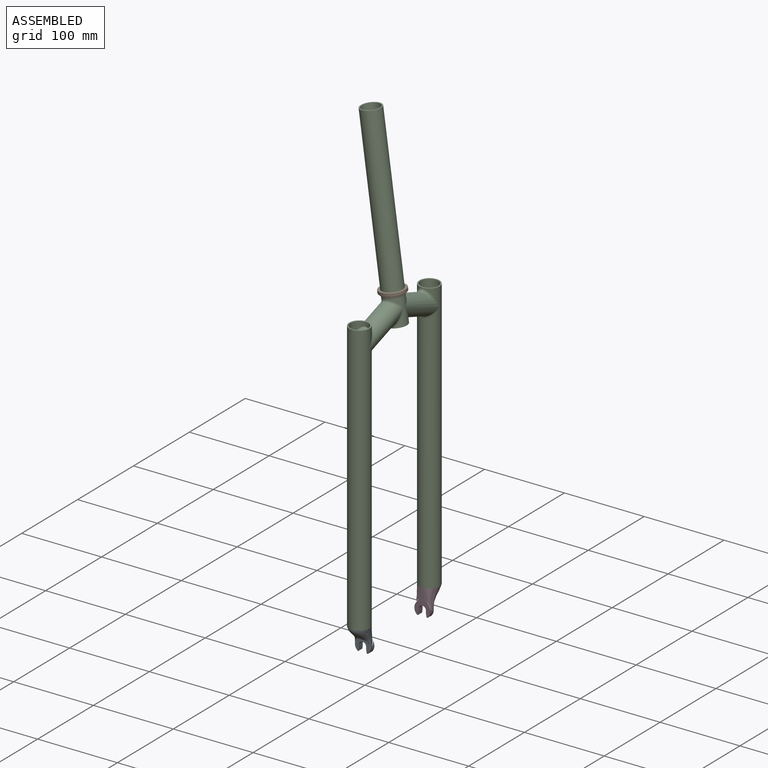
[diagram: assembled view]
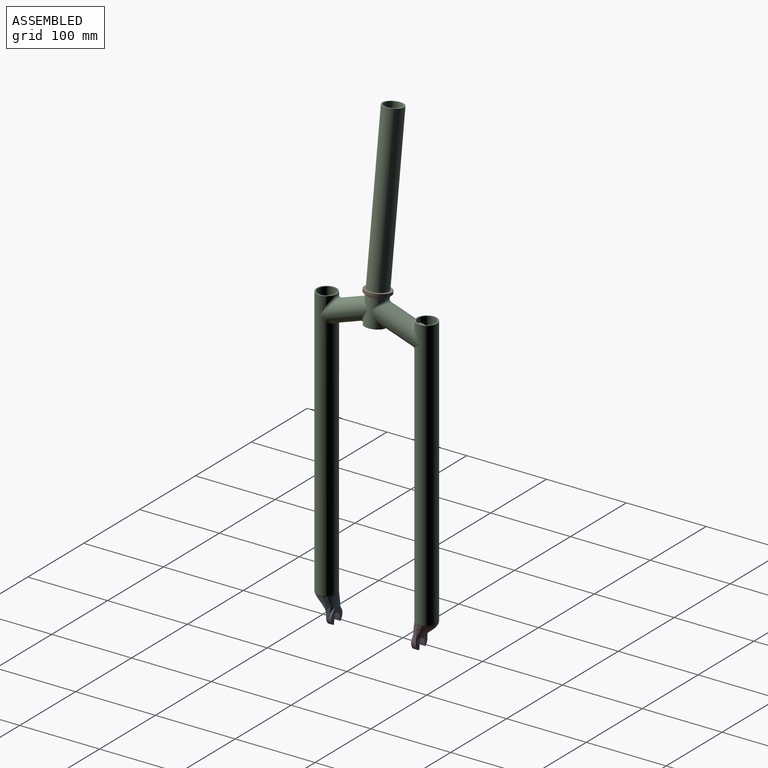
[diagram: assembled view, second angle]
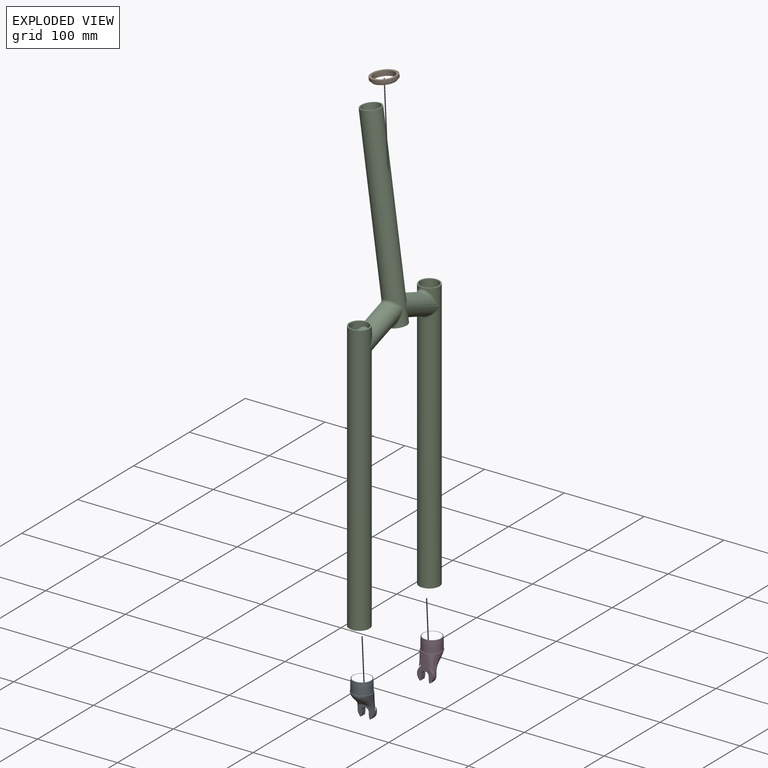
[diagram: exploded view]
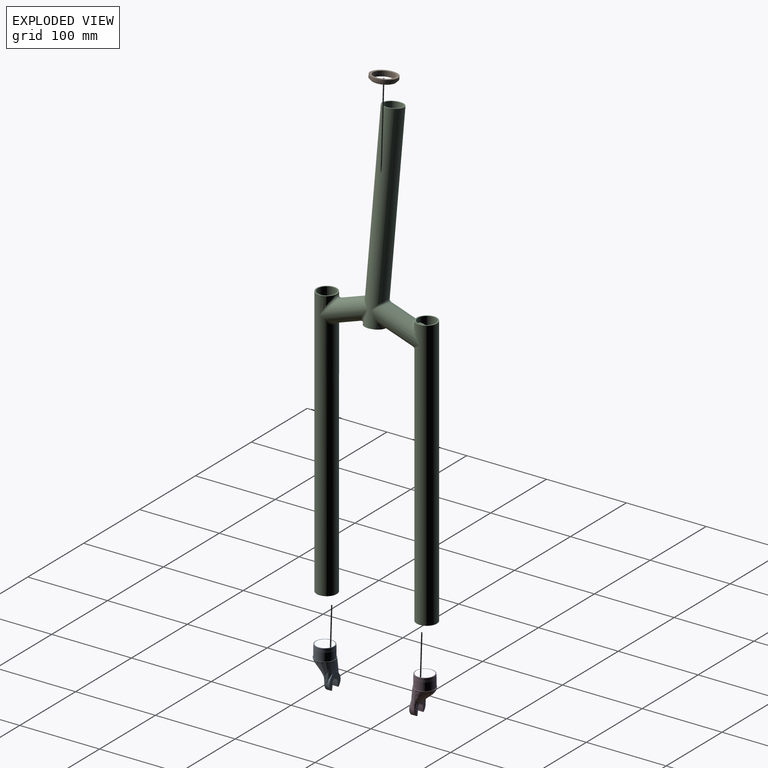
[diagram: exploded view, second angle]
ASSEMBLY  parts=4 mates=3
PART A: 75 faces, bbox 28.9x30.6x52.1 mm
  f0: plane 20.65x20.64mm, normal (0,0,-1), area 1.6mm2, adj f50,f51
  f1: plane 23.6x23.6mm, normal (0,0,1), area 69.4mm2, adj f23,f51
  f2: cylinder r=10mm len=0.79mm, axis (0,1,0), area 0mm2, adj f10,f14
  f3: cylinder r=10mm len=13.04mm, axis (0,1,0), area 66.3mm2, adj f10,f12,f22,f26,f68
  f4: bspline ~25.51x25mm, area 780.9mm2, adj f12,f13,f15,f66,f71,f72,f73,f74
  f5: cylinder r=10mm len=0.79mm, axis (0,1,0), area 0mm2, adj f10,f14
  f6: plane 7x2.89mm, normal (1,0,0), area 20.2mm2, adj f7,f10,f11,f18
  f7: cylinder r=4.55mm len=9.1mm, axis (0,1,0), area 100.1mm2, adj f6,f8,f10,f11
  f8: plane 7x2.89mm, normal (-1,0,0), area 20.2mm2, adj f7,f10,f11,f17
  f9: cylinder r=10mm len=13.04mm, axis (0,1,0), area 66.2mm2, adj f10,f13,f21,f27,f69
  f10: plane 20.03x17.66mm, normal (0,-1,0), area 195.7mm2, adj f2,f3,f5,f6,f7,f8,f9,f14
  f11: plane 18.53x16.4mm, normal (0,1,0), area 140.6mm2, adj f6,f7,f8,f17,f18,f20,f21,f22
  f12: bspline ~25x7mm, area 88.5mm2, adj f3,f4,f15,f25,f26,f66,f67
  f13: bspline ~25x7mm, area 88.5mm2, adj f4,f9,f15,f24,f27,f70,f71
  f14: bspline ~25x20mm, area 168mm2, adj f2,f5,f10,f15,f24,f25,f26,f27
  f15: plane 25.42x25.4mm, normal (0,0,1), area 54.3mm2, adj f4,f12,f13,f14,f19
  f16: cylinder r=10mm len=13.76mm, axis (0,1,0), area 0mm2, adj f20,f73
  f17: plane 7x3.88mm, normal (-0.99,0,-0.14), area 27.4mm2, adj f8,f10,f11,f22
  f18: plane 7x3.88mm, normal (0.99,0,-0.14), area 27.4mm2, adj f6,f10,f11,f21
  f19: cylinder r=12mm len=24mm, axis (0,0,-1), area 754mm2, adj f15,f23
  f20: torus R=9mm, axis (0,-1,0), area 33.6mm2, adj f11,f16,f72,f74
  f21: cylinder r=1mm len=7mm, axis (0,1,0), area 14.4mm2, adj f9,f10,f11,f18,f69
  f22: cylinder r=1mm len=7mm, axis (0,1,0), area 14.4mm2, adj f3,f10,f11,f17,f68
  f23: cone r=11.8mm half-angle=2.3deg, axis (0,0,-1), area 374.1mm2, adj f1,f19
  f24: bspline ~26.69x4.7mm, area 30.1mm2, adj f13,f14,f27
  f25: bspline ~26.69x4.7mm, area 29.3mm2, adj f12,f14,f26
  f26: bspline ~14.94x9.64mm, area 12.7mm2, adj f3,f10,f12,f14,f25
  f27: bspline ~10.83x9.67mm, area 12.5mm2, adj f9,f10,f13,f14,f24
  f28: plane 3.1x2.43mm, normal (0.99,0,0.14), area 5.9mm2, adj f29,f35,f54,f55,f61,f62
  f29: plane 2.77x1.6mm, normal (1,0,0), area 4.4mm2, adj f28,f30,f54,f62
  f30: cylinder r=6.25mm len=12.5mm, axis (0,1,0), area 31.4mm2, adj f29,f31,f53,f60
  f31: plane 2.77x1.6mm, normal (-1,0,0), area 4.4mm2, adj f30,f32,f52,f58
  f32: plane 4.17x3.4mm, normal (-0.99,0,0.14), area 6.1mm2, adj f31,f33,f52,f58
  f33: cylinder r=8.3mm len=8mm, axis (0,1,0), area 24.8mm2, adj f32,f34,f36,f39,f41,f52,f58
  f34: plane 15.62x13.51mm, normal (0,1,0), area 37.9mm2, adj f33,f41,f47,f58,f59,f60,f61,f62
  f35: cylinder r=8.3mm len=7.04mm, axis (0,1,0), area 10.9mm2, adj f28,f42,f44,f55,f56,f61
  f36: plane 15.6x13.04mm, normal (0,-1,0), area 38.7mm2, adj f33,f38,f39,f52,f53,f54,f55,f56
  f37: cylinder r=11.7mm len=12.3mm, axis (0,1,0), area 0mm2, adj f38,f64
  f38: torus R=9mm, axis (0,-1,0), area 63.9mm2, adj f36,f37,f39,f57,f63,f65
  f39: offset ~28.4x10.54mm, area 61.8mm2, adj f33,f36,f38,f40,f41,f45,f46,f65
  f40: bspline ~26.5x3.65mm, area 31.5mm2, adj f39,f41,f46,f47
  f41: offset ~14.28x13.69mm, area 11.9mm2, adj f33,f34,f39,f40,f47
  f42: offset ~18.34x12.12mm, area 7.5mm2, adj f35,f43,f44,f47,f59
  f43: bspline ~26.5x3.65mm, area 31.5mm2, adj f42,f44,f47,f48
  f44: offset ~28.4x10.54mm, area 51.5mm2, adj f35,f42,f43,f45,f48,f56,f57
  f45: offset ~28.91x28.51mm, area 464.5mm2, adj f39,f44,f46,f48,f49,f57,f63,f64
  f46: bspline ~7.65x5.71mm, area 8.9mm2, adj f39,f40,f45,f47,f49,f50
  f47: offset ~28.4x23.4mm, area 149.7mm2, adj f34,f40,f41,f42,f43,f46,f48,f50
  f48: bspline ~7.88x5.93mm, area 8.9mm2, adj f43,f44,f45,f47,f49,f50
  f49: bspline ~21.15x17.5mm, area 61.1mm2, adj f45,f46,f48,f50
  f50: bspline ~22.01x22mm, area 37.5mm2, adj f0,f46,f47,f48,f49
  f51: cone r=10.3mm half-angle=2deg, axis (0,0,1), area 1041.3mm2, adj f0,f1
  f52: cylinder r=1mm len=5.07mm, axis (0,0,-1), area 6.6mm2, adj f31,f32,f33,f36,f53
  f53: torus R=7.25mm, axis (0,-1,0), area 32.6mm2, adj f30,f36,f52,f54
  f54: cylinder r=1mm len=4.69mm, axis (0,0,1), area 4.8mm2, adj f28,f29,f36,f53,f55
  f55: torus R=7.3mm, axis (0,-1,0), area 7.9mm2, adj f28,f35,f36,f54,f56
  f56: bspline ~9.94x1.59mm, area 7.9mm2, adj f35,f36,f44,f55,f57
  f57: bspline ~5.4x3.2mm, area 9mm2, adj f38,f44,f45,f56,f63
  f58: cylinder r=1mm len=5.07mm, axis (0,0,1), area 6.6mm2, adj f31,f32,f33,f34,f60
  f59: bspline ~8.47x8.43mm, area 10.4mm2, adj f34,f42,f47,f61
  f60: torus R=7.25mm, axis (0,-1,0), area 32.6mm2, adj f30,f34,f58,f62
  f61: torus R=7.3mm, axis (0,-1,0), area 9.3mm2, adj f28,f34,f35,f59,f62
  f62: cylinder r=1mm len=4.69mm, axis (0,0,-1), area 4.8mm2, adj f28,f29,f34,f60,f61
  f63: bspline ~3.08x2.77mm, area 3.4mm2, adj f38,f45,f57,f64
  f64: bspline ~14.66x4.02mm, area 15.3mm2, adj f37,f45,f63,f65
  f65: bspline ~6.18x4.51mm, area 8mm2, adj f38,f39,f45,f64
  f66: bspline ~7.7x1.04mm, area 6.5mm2, adj f4,f11,f12,f67
  f67: bspline ~10.17x1.2mm, area 0.8mm2, adj f11,f12,f66,f68
  f68: torus R=9mm, axis (0,-1,0), area 14mm2, adj f3,f11,f22,f67
  f69: torus R=9mm, axis (0,-1,0), area 14mm2, adj f9,f11,f21,f70
  f70: bspline ~10.17x1.2mm, area 0.8mm2, adj f11,f13,f69,f71
  f71: bspline ~8.81x1.16mm, area 6.5mm2, adj f4,f11,f13,f70
  f72: bspline ~7.04x2.76mm, area 6.2mm2, adj f4,f11,f20,f73
  f73: bspline ~17.2x5.21mm, area 19.2mm2, adj f4,f16,f72,f74
  f74: bspline ~7.04x2.76mm, area 6.2mm2, adj f4,f11,f20,f73
PART B: 8 faces, bbox 31.9x31.9x6.2 mm
  f0: plane 31.9x31.9mm, normal (0,0,1), area 288.3mm2, adj f1,f5
  f1: cone r=12.74mm half-angle=0.1deg, axis (0,0,1), area 493mm2, adj f0,f2
  f2: plane 26.86x26.86mm, normal (0,0,-1), area 56.7mm2, adj f1,f6
  f3: cylinder r=13.93mm len=27.86mm, axis (0,0,1), area 139.4mm2, adj f4,f6
  f4: plane 30.9x30.9mm, normal (0,0,-1), area 140.2mm2, adj f3,f7
  f5: cylinder r=15.95mm len=31.9mm, axis (0,0,1), area 357.1mm2, adj f0,f7
  f6: cone r=13.93mm half-angle=45deg, axis (0,0,1), area 60.8mm2, adj f2,f3
  f7: cone r=15.95mm half-angle=45deg, axis (0,0,1), area 69.7mm2, adj f4,f5
PART C: 74 faces, bbox 151x71.5x557.2 mm
  f0: cylinder r=12.7mm len=240mm, axis (0,0,-1), area 17296mm2, adj f1,f48,f49,f50
  f1: plane 25.62x25.62mm, normal (0,0,-1), area 186.3mm2, adj f0,f2,f43,f44,f45
  f2: bspline ~11.08x5.04mm, area 42.1mm2, adj f1,f3,f24,f49
  f3: bspline ~18.11x15.97mm, area 60.3mm2, adj f2,f4,f24,f43
  f4: bspline ~18.37x16.22mm, area 60.3mm2, adj f3,f5,f43,f44
  f5: cylinder r=12.7mm len=70.78mm, axis (0.95,-0.04,-0.32), area 3606.5mm2, adj f4,f6,f7,f8,f9,f10,f11,f12
  f6: bspline ~2.86x2.18mm, area 0mm2, adj f5,f7,f12
  f7: bspline ~25.52x23.6mm, area 178mm2, adj f5,f6,f8,f12
  f8: bspline ~2.83x2.18mm, area 0mm2, adj f5,f7,f12
  f9: bspline ~1.92x1.46mm, area 0mm2, adj f5,f10,f12
  f10: bspline ~25.26x14.72mm, area 100.6mm2, adj f5,f9,f11,f12
  f11: bspline ~1.92x1.44mm, area 0mm2, adj f5,f10,f12
  f12: cylinder r=12.7mm len=340.21mm, axis (0,0.14,0.99), area 26279.7mm2, adj f5,f6,f7,f8,f9,f10,f11,f13
  f13: plane 25.4x25.17mm, normal (0,-0.14,-0.99), area 46.7mm2, adj f12,f14
  f14: cylinder r=12.1mm len=194.6mm, axis (0,0.14,0.99), area 14680.8mm2, adj f13,f15
  f15: cone r=11.13mm half-angle=0.9deg, axis (0,-0.14,-0.99), area 4598.1mm2, adj f14,f16
  f16: cylinder r=11.13mm len=86.04mm, axis (0,0.14,0.99), area 5729.3mm2, adj f15,f17,f18,f19,f20,f21,f22,f23
  f17: cylinder r=11.5mm len=22.19mm, axis (0.95,-0.04,-0.32), area 150.2mm2, adj f16,f19
  f18: cylinder r=12.7mm len=21.77mm, axis (0.95,-0.04,-0.32), area 128.3mm2, adj f16,f19
  f19: cone r=12.7mm half-angle=90deg, axis (0.95,-0.04,-0.32), area 33.4mm2, adj f16,f17,f18
  f20: cylinder r=12.7mm len=22.75mm, axis (0.95,-0.04,-0.32), area 321.6mm2, adj f16,f21
  f21: cone r=12.7mm half-angle=90deg, axis (0.95,-0.04,-0.32), area 34.2mm2, adj f16,f20,f22
  f22: cylinder r=11.5mm len=22.73mm, axis (0.95,-0.04,-0.32), area 326.2mm2, adj f16,f21
  f23: plane 25.4x25.17mm, normal (0,0.14,0.99), area 117.6mm2, adj f12,f16
  f24: cylinder r=12.7mm len=70.78mm, axis (-0.95,-0.04,-0.32), area 3606mm2, adj f2,f3,f5,f25,f26,f27,f28,f29
  f25: bspline ~1.92x1.46mm, area 0mm2, adj f24,f29,f42
  f26: bspline ~2.83x2.18mm, area 0mm2, adj f24,f27,f29
  f27: bspline ~25.52x23.6mm, area 178mm2, adj f24,f26,f28,f29
  f28: bspline ~2.86x2.18mm, area 0mm2, adj f24,f27,f29
  f29: cylinder r=12.7mm len=340.21mm, axis (0,0.14,0.99), area 26279.7mm2, adj f24,f25,f26,f27,f28,f30,f40,f41
  f30: plane 25.4x25.17mm, normal (0,0.14,0.99), area 117.6mm2, adj f29,f31
  f31: cylinder r=11.13mm len=86.04mm, axis (0,0.14,0.99), area 5729.2mm2, adj f30,f32,f33,f34,f35,f36,f37,f38
  f32: cylinder r=12.7mm len=21.77mm, axis (-0.95,-0.04,-0.32), area 128.3mm2, adj f31,f33
  f33: cone r=12.7mm half-angle=90deg, axis (-0.95,-0.04,-0.32), area 33.4mm2, adj f31,f32,f34
  f34: cylinder r=11.5mm len=22.19mm, axis (-0.95,-0.04,-0.32), area 150.3mm2, adj f31,f33
  f35: cylinder r=12.7mm len=22.75mm, axis (-0.95,-0.04,-0.32), area 321.6mm2, adj f31,f36
  f36: cone r=12.7mm half-angle=90deg, axis (-0.95,-0.04,-0.32), area 34.2mm2, adj f31,f35,f37
  f37: cylinder r=11.5mm len=22.73mm, axis (-0.95,-0.04,-0.32), area 326.1mm2, adj f31,f36
  f38: cone r=11.13mm half-angle=0.9deg, axis (0,-0.14,-0.99), area 4598.1mm2, adj f31,f39
  f39: cylinder r=12.1mm len=194.6mm, axis (0,0.14,0.99), area 14680.8mm2, adj f38,f40
  f40: plane 25.4x25.17mm, normal (0,-0.14,-0.99), area 46.7mm2, adj f29,f39
  f41: bspline ~1.92x1.44mm, area 0mm2, adj f24,f29,f42
  f42: bspline ~25.26x14.72mm, area 100.6mm2, adj f24,f25,f29,f41
  f43: cylinder r=12.7mm len=22.69mm, axis (0,0,-1), area 234.7mm2, adj f1,f3,f4
  f44: bspline ~11.17x5.07mm, area 42.1mm2, adj f1,f4,f5,f48
  f45: cylinder r=10.1mm len=20.2mm, axis (0,0,-1), area 466.9mm2, adj f1,f46,f47
  f46: cylinder r=12.7mm len=20.72mm, axis (-0.95,-0.04,-0.32), area 179.2mm2, adj f45,f47
  f47: cylinder r=12.7mm len=20.73mm, axis (0.95,-0.04,-0.32), area 213.8mm2, adj f45,f46
  f48: bspline ~32.03x25.11mm, area 162.6mm2, adj f0,f5,f44,f49
  f49: bspline ~31.8x25.11mm, area 162.5mm2, adj f0,f2,f24,f48
  f50: plane 25.4x25.4mm, normal (0,0,1), area 119.6mm2, adj f0,f51
  f51: cylinder r=11.1mm len=141mm, axis (0,0,-1), area 9833.5mm2, adj f50,f52
  f52: cone r=11.1mm half-angle=1.7deg, axis (0,0,1), area 2265.6mm2, adj f51,f53
  f53: cylinder r=10.1mm len=60.44mm, axis (0,0,-1), area 3478.8mm2, adj f52,f54,f55,f56,f57,f58,f59,f60
  f54: cylinder r=11.5mm len=19.82mm, axis (0.95,-0.04,-0.32), area 0mm2, adj f53,f55
  f55: cone r=12.7mm half-angle=90deg, axis (0.95,-0.04,-0.32), area 27.8mm2, adj f53,f54,f56
  f56: cylinder r=12.7mm len=19.46mm, axis (0.95,-0.04,-0.32), area 0mm2, adj f53,f55
  f57: cylinder r=12.7mm len=17.51mm, axis (-0.95,-0.04,-0.32), area 32.9mm2, adj f53,f66,f67
  f58: cylinder r=12.7mm len=17.51mm, axis (0.95,-0.04,-0.32), area 32.9mm2, adj f53,f62,f63
  f59: cylinder r=12.7mm len=19.74mm, axis (-0.95,-0.04,-0.32), area 69.7mm2, adj f53,f60
  f60: cone r=12.7mm half-angle=90deg, axis (-0.95,-0.04,-0.32), area 27.8mm2, adj f53,f59,f61
  f61: cylinder r=11.5mm len=20.11mm, axis (-0.95,-0.04,-0.32), area 80.1mm2, adj f53,f60
  f62: cylinder r=11.5mm len=20.18mm, axis (-0.95,-0.04,-0.32), area 97.8mm2, adj f53,f58,f63
  f63: cone r=12.7mm half-angle=90deg, axis (0.95,-0.04,-0.32), area 26.4mm2, adj f53,f58,f62,f64
  f64: cylinder r=11.5mm len=20.32mm, axis (0.95,-0.04,-0.32), area 77mm2, adj f53,f63,f65
  f65: cylinder r=11.5mm len=20.32mm, axis (-0.95,-0.04,-0.32), area 77mm2, adj f53,f64,f66
  f66: cone r=12.7mm half-angle=90deg, axis (-0.95,-0.04,-0.32), area 26.4mm2, adj f53,f57,f65,f67
  f67: cylinder r=11.5mm len=20.18mm, axis (0.95,-0.04,-0.32), area 146.3mm2, adj f53,f57,f66
  f68: cylinder r=12.7mm len=27.21mm, axis (0,0.14,0.99), area 510.8mm2, adj f69
  f69: cylinder r=11.5mm len=60.6mm, axis (-0.95,-0.04,-0.32), area 3354.7mm2, adj f68,f70
  f70: cylinder r=12.7mm len=24.3mm, axis (0,0,-1), area 512.2mm2, adj f69
  f71: cylinder r=12.7mm len=24.3mm, axis (0,0,-1), area 511.5mm2, adj f72
  f72: cylinder r=11.5mm len=60.6mm, axis (0.95,-0.04,-0.32), area 3354.5mm2, adj f71,f73
  f73: cylinder r=12.7mm len=27.21mm, axis (0,0.14,0.99), area 511.1mm2, adj f72
PART D: same geometry as A
PLACE A rot(axis=(0,0,1),180deg) t=(-145.71,212.69,-287.72)mm
PLACE B rot(axis=(0.07,-0.07,-1),90.3deg) t=(-145.66,275.39,-324.88)mm
PLACE C rot(axis=(0.07,-0.07,-1),90.3deg) t=(-145.71,275.39,-324.52)mm
PLACE D t=(-145.71,338.09,-287.72)mm
MATE fastened C.f38 <-> D.f19  axis (0,0,-1) through (-145.71,338.09,-287.72)mm
MATE slider C.f0 <-> B.f1  axis (-0.14,0,0.99) through (-175.15,275.39,268.63)mm
MATE fastened A.f19 <-> C.f15  axis (0,0,1) through (-145.71,212.69,-287.72)mm
